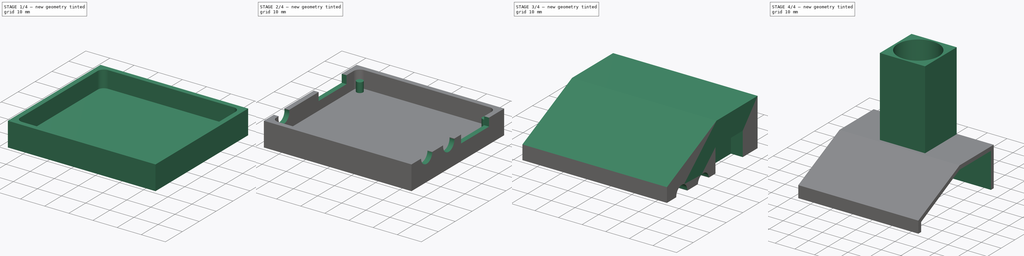
[diagram: build sequence overview — one tinted view per stage of 4, left to right]
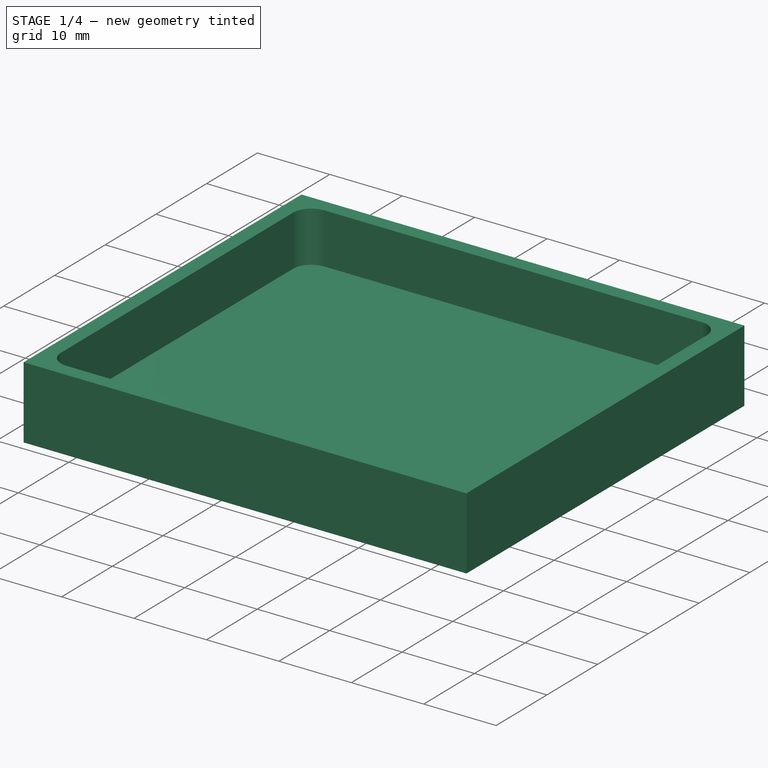
[diagram: stage 1 of 4 — iso view after this stage's code; geometry added in this stage tinted green]
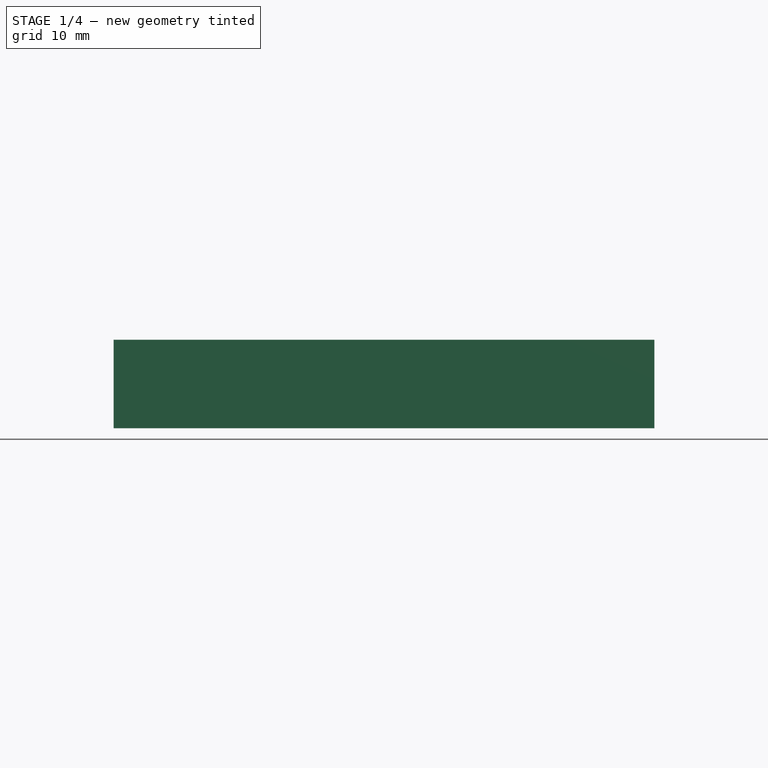
[diagram: stage 1 of 4 — front view after this stage's code; geometry added in this stage tinted green]
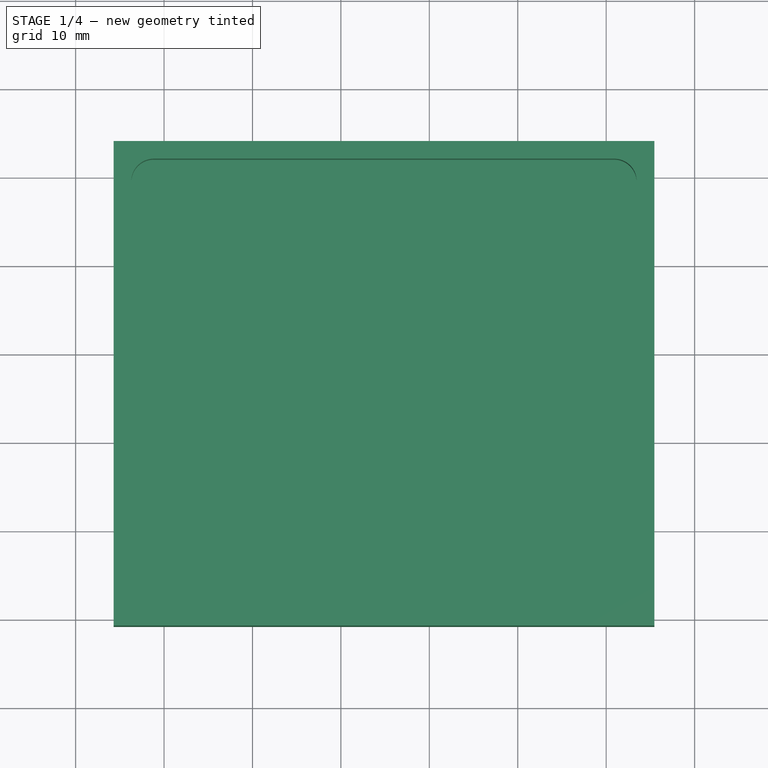
[diagram: stage 1 of 4 — top view after this stage's code; geometry added in this stage tinted green]
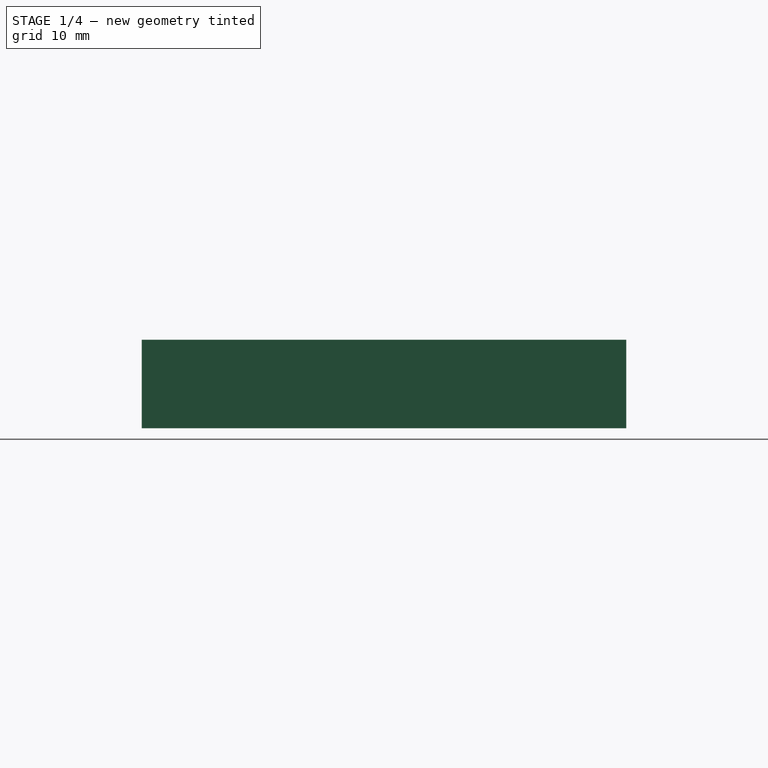
[diagram: stage 1 of 4 — right view after this stage's code; geometry added in this stage tinted green]
FCSTD DOCUMENT  (FreeCAD 0.19RUnknown)
Label: FT81X-Mic
License: All rights reserved
LicenseURL: http://en.wikipedia.org/wiki/All_rights_reserved
objects: Sketcher::SketchObject×12, Part::Feature×11, PartDesign::Pocket×7, PartDesign::Pad×5, PartDesign::SubShapeBinder×3, Part::Compound2×2, App::Link×2, PartDesign::Body×2, App::LinkGroup×1
note: 52 computed .brp shape members not serialized (recipe doc carries the construction recipe); baked Part::Feature solids carry a one-line shape summary decoded from their .brp

FEATURE [Part::Feature] Solid
  shape: bbox 17.86 x 16.05 x 16.64 mm, 151 faces (baked)
FEATURE [Part::Feature] Solid001
  shape: bbox 3 x 7.27 x 2.038 mm, 6 faces (baked)
FEATURE [Part::Feature] Solid002
  shape: bbox 3 x 7.27 x 2.038 mm, 6 faces (baked)
FEATURE [Part::Compound2] Compound  label="RJ45_Amphenol_RJHSE538X"
  Links = -> [Solid,Solid001,Solid002]
FEATURE [Part::Feature] Solid003
  shape: bbox 0.3 x 3.5 x 1 mm, 6 faces (baked)
FEATURE [Part::Feature] Solid004
  shape: bbox 1 x 3.5 x 0.3 mm, 6 faces (baked)
FEATURE [Part::Feature] Solid005
  shape: bbox 1 x 6 x 6 mm, 8 faces (baked)
FEATURE [Part::Feature] Solid006
  shape: bbox 13 x 6.45 x 12 mm, 34 faces (baked)
FEATURE [Part::Feature] Solid007
  shape: bbox 1 x 3.5 x 0.3 mm, 6 faces (baked)
FEATURE [Part::Feature] Solid008
  shape: bbox 1 x 3.5 x 0.3 mm, 6 faces (baked)
FEATURE [Part::Feature] Solid009
  shape: bbox 1 x 3.5 x 0.3 mm, 6 faces (baked)
FEATURE [Part::Compound2] Compound001  label="FC68131"
  Links = -> [Solid003,Solid004,Solid005,Solid006,Solid007,Solid008,Solid009]
FEATURE [Part::Feature] Solid010  label="Mikadapter PCB"
  shape: bbox 57.15 x 50.8 x 1.6 mm, 76 faces (baked)
FEATURE [App::Link] Link  label="RJ45_Amphenol_RJHSE538X001"
  ElementCount = 2
  LinkedObject = -> Compound
  PlacementList = 2 placements: [(163.115,-58.658,1.65),(123.12,-65.548,1.65)]
  ScaleList = (2) [(1,1,1),(1,1,1)]
  ShowElement = false
FEATURE [App::Link] Link001  label="FC68132"
  ElementCount = 3
  LinkedObject = -> Compound001
  PlacementList = 3 placements: [(166.45,-77.771,2.15),(166.37,-90.805,2.65),(119.38,-90.805,1.65)]
  ScaleList = (3) [(1,1,1),(1,1,1),(1,1,1)]
  ShowElement = false
FEATURE [App::LinkGroup] LinkGroup  label="Mikadapter 1"
  ElementList = -> [Link,Link001,Solid010]
  LinkMode = 0
  Placement = pos=(-138,69.0001,5) rot=(0,0,1;0rad)
FEATURE [PartDesign::SubShapeBinder] Binder
  BindMode = 0
  ClaimChildren = false
  Context = -> Body [Binder.]
  Fuse = false
  MakeFace = true
  PartialLoad = false
  Relative = true
  Support = -> [LinkGroup]
  _Version = 2
FEATURE [Sketcher::SketchObject] Sketch
  ExternalGeometry = -> [Binder]
  FullyConstrained = true
  MapMode = 5
  Support = -> [XY_Plane]
  sketch-geometry (4):
    g0: LineSegment StartX=-25.7 StartY=24.0101 StartZ=0 EndX=35.45 EndY=24.0101 EndZ=0
    g1: LineSegment StartX=35.45 StartY=24.0101 StartZ=0 EndX=35.45 EndY=-30.7899 EndZ=0
    g2: LineSegment StartX=35.45 StartY=-30.7899 StartZ=0 EndX=-25.7 EndY=-30.7899 EndZ=0
    g3: LineSegment StartX=-25.7 StartY=-30.7899 StartZ=0 EndX=-25.7 EndY=24.0101 EndZ=0
  constraints (12):
    c: Coincident(g0,g1)
    c: Coincident(g1,g2)
    c: Coincident(g2,g3)
    c: Coincident(g3,g0)
    c: Horizontal(g0)
    c: Horizontal(g2)
    c: Vertical(g1)
    c: Vertical(g3)
    c: DistanceY(g-3,g0) = 2
    c: DistanceY(g1,g-7) = 2
    c: DistanceX(g2,g-6) = 2
    c: DistanceX(g-8,g0) = 2
FEATURE [PartDesign::Pad] Pad
  Direction = (1,1,1)
  Length = 10
  Length2 = 100
  Profile = -> Sketch
  Type = 0
FEATURE [Sketcher::SketchObject] Sketch001
  ExternalGeometry = -> [Binder]
  FullyConstrained = true
  MapMode = 5
  Placement = pos=(0,0,10) rot=(0,0,1;0rad)
  Support = -> [Pad]
  sketch-geometry (8):
    g0: ArcOfCircle CenterX=30.91 CenterY=19.4701 CenterZ=0 NormalX=0 NormalY=0 NormalZ=1 AngleXU=0 Radius=2.53999 StartAngle=6.28318 EndAngle=7.85399
    g1: ArcOfCircle CenterX=30.275 CenterY=-25.6149 CenterZ=0 NormalX=0 NormalY=0 NormalZ=1 AngleXU=0 Radius=3.17501 StartAngle=4.71239 EndAngle=6.28318
    g2: ArcOfCircle CenterX=-21.16 CenterY=-26.25 CenterZ=0 NormalX=0 NormalY=0 NormalZ=1 AngleXU=0 Radius=2.53999 StartAngle=3.14159 EndAngle=4.71239
    g3: ArcOfCircle CenterX=-21.16 CenterY=19.4701 CenterZ=0 NormalX=0 NormalY=0 NormalZ=1 AngleXU=0 Radius=2.53997 StartAngle=1.57078 EndAngle=3.1416
    g4: LineSegment StartX=-21.16 StartY=22.0101 StartZ=0 EndX=30.91 EndY=22.0101 EndZ=0
    g5: LineSegment StartX=33.45 StartY=19.4701 StartZ=0 EndX=33.45 EndY=-25.6149 EndZ=0
    g6: LineSegment StartX=30.275 StartY=-28.7899 StartZ=0 EndX=-21.16 EndY=-28.7899 EndZ=0
    g7: LineSegment StartX=-23.7 StartY=-26.2499 StartZ=0 EndX=-23.7 EndY=19.4701 EndZ=0
  constraints (20):
    c: Coincident(g0,g-10)
    c: Coincident(g0,g-10)
    c: Coincident(g0,g-10)
    c: Coincident(g1,g-8)
    c: Coincident(g1,g-9)
    c: Coincident(g1,g-8)
    c: Coincident(g2,g-6)
    c: Coincident(g2,g-6)
    c: Coincident(g2,g-7)
    c: Coincident(g3,g-4)
    c: Coincident(g3,g-5)
    c: Coincident(g3,g-4)
    c: Coincident(g4,g3)
    c: Coincident(g4,g0)
    c: Coincident(g5,g0)
    c: Coincident(g5,g1)
    c: Coincident(g6,g1)
    c: Coincident(g6,g2)
    c: Coincident(g7,g2)
    c: Coincident(g7,g3)
FEATURE [PartDesign::Pocket] Pocket
  BaseFeature = -> Pad
  Length = 7
  Length2 = 100
  Profile = -> Sketch001
  Type = 0
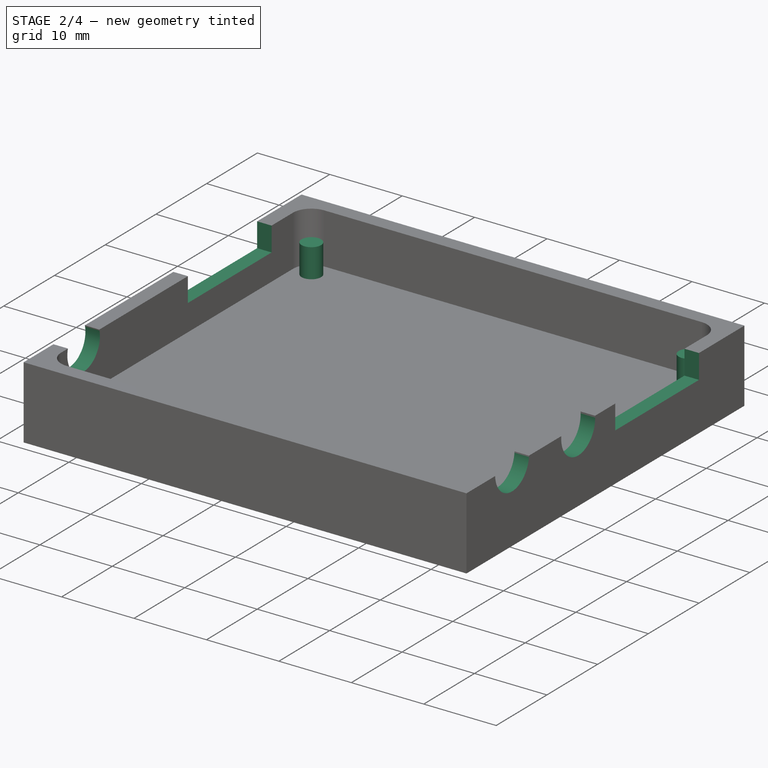
[diagram: stage 2 of 4 — iso view after this stage's code; geometry added in this stage tinted green]
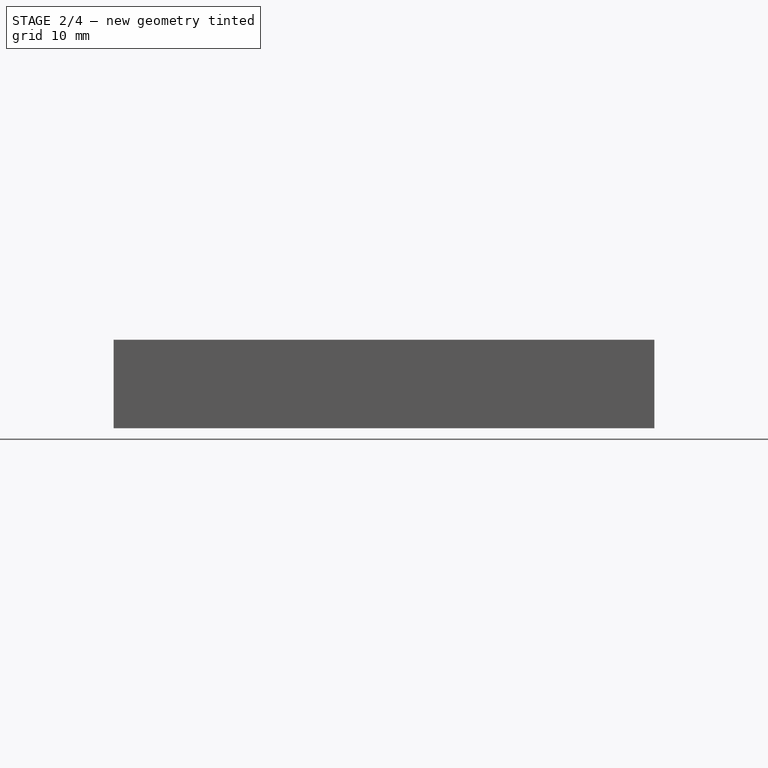
[diagram: stage 2 of 4 — front view after this stage's code; geometry added in this stage tinted green]
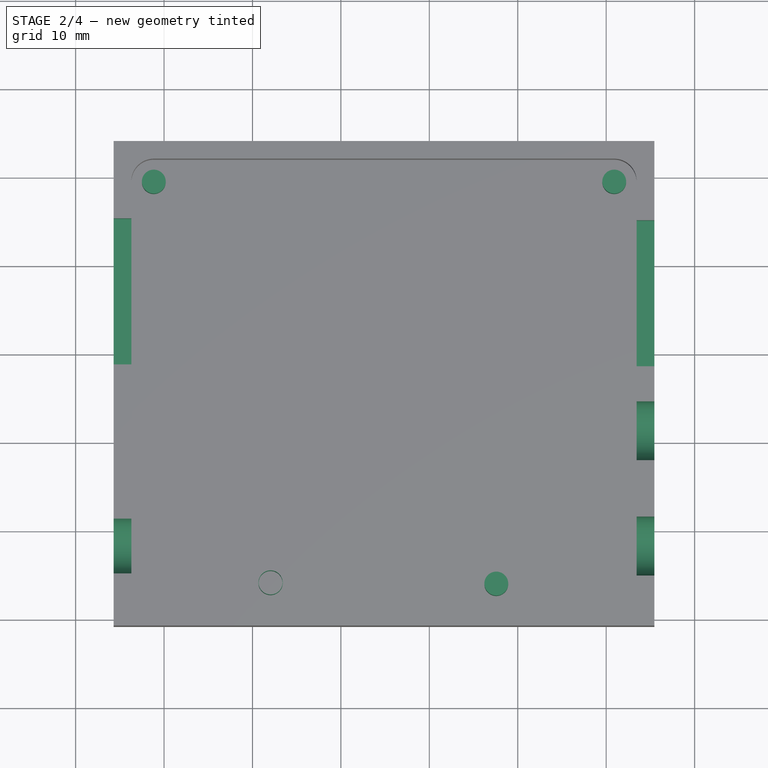
[diagram: stage 2 of 4 — top view after this stage's code; geometry added in this stage tinted green]
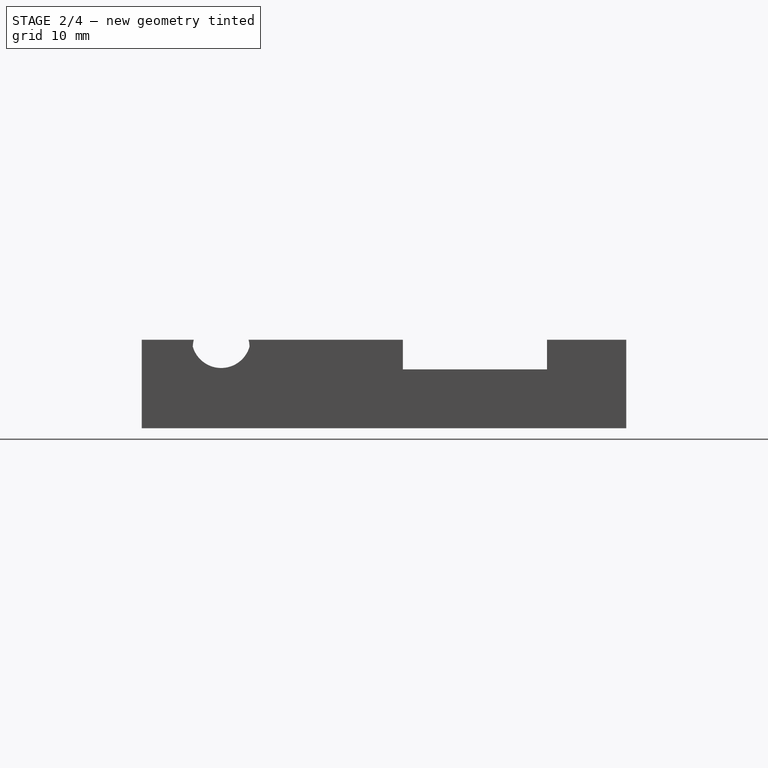
[diagram: stage 2 of 4 — right view after this stage's code; geometry added in this stage tinted green]
FEATURE [Sketcher::SketchObject] Sketch002
  ExternalGeometry = -> [Binder,Pocket]
  FullyConstrained = true
  MapMode = 5
  Placement = pos=(-25.7,0,0) rot=(0.57735,-0.57735,-0.57735;2.0944rad)
  Support = -> [Pocket]
  sketch-geometry (5):
    g0: Circle CenterX=21.8049 CenterY=9.15 CenterZ=0 NormalX=0 NormalY=0 NormalZ=1 AngleXU=0 Radius=3.21
    g1: LineSegment StartX=-15.2571 StartY=6.65 StartZ=0 EndX=1.25294 EndY=6.65 EndZ=0
    g2: LineSegment StartX=1.25294 StartY=6.65 StartZ=0 EndX=1.25294 EndY=10 EndZ=0
    g3: LineSegment StartX=1.25294 StartY=10 StartZ=0 EndX=-15.2571 EndY=10 EndZ=0
    g4: LineSegment StartX=-15.2571 StartY=10 StartZ=0 EndX=-15.2571 EndY=6.65 EndZ=0
  constraints (13):
    c: Symmetric(g-10,g-10,g0)
    c: Diameter(g0) = 6.42
    c: Coincident(g1,g2)
    c: Coincident(g2,g3)
    c: Coincident(g3,g4)
    c: Coincident(g4,g1)
    c: Horizontal(g1)
    c: Horizontal(g3)
    c: Vertical(g2)
    c: Vertical(g4)
    c: Coincident(g1,g-7)
    c: DistanceX(g1,g-5) = 0
    c: PointOnObject(g3,g-11)
FEATURE [PartDesign::Pocket] Pocket001
  BaseFeature = -> Pocket
  Length = 5
  Length2 = 100
  Profile = -> Sketch002
  Type = 0
FEATURE [Sketcher::SketchObject] Sketch003
  ExternalGeometry = -> [Binder,Pocket001]
  FullyConstrained = true
  MapMode = 5
  Placement = pos=(35.45,0,0) rot=(0.57735,0.57735,0.57735;2.0944rad)
  Support = -> [Pocket001]
  sketch-geometry (6):
    g0: Circle CenterX=-21.8049 CenterY=10.15 CenterZ=0 NormalX=0 NormalY=0 NormalZ=1 AngleXU=0 Radius=3.34
    g1: Circle CenterX=-8.77094 CenterY=9.65 CenterZ=0 NormalX=0 NormalY=0 NormalZ=1 AngleXU=0 Radius=3.34
    g2: LineSegment StartX=-1.46294 StartY=6.65 StartZ=0 EndX=15.0471 EndY=6.65 EndZ=0
    g3: LineSegment StartX=15.0471 StartY=6.65 StartZ=0 EndX=15.0471 EndY=10 EndZ=0
    g4: LineSegment StartX=15.0471 StartY=10 StartZ=0 EndX=-1.46294 EndY=10 EndZ=0
    g5: LineSegment StartX=-1.46294 StartY=10 StartZ=0 EndX=-1.46294 EndY=6.65 EndZ=0
  constraints (15):
    c: Equal(g1,g0)
    c: Symmetric(g-6,g-6,g0)
    c: Symmetric(g-4,g-4,g1)
    c: Diameter(g0) = 6.68
    c: Coincident(g2,g3)
    c: Coincident(g3,g4)
    c: Coincident(g4,g5)
    c: Coincident(g5,g2)
    c: Horizontal(g2)
    c: Horizontal(g4)
    c: Vertical(g3)
    c: Vertical(g5)
    c: Coincident(g2,g-8)
    c: DistanceX(g2,g-9) = 0
    c: PointOnObject(g3,g-10)
FEATURE [PartDesign::Pocket] Pocket002
  BaseFeature = -> Pocket001
  Length = 5
  Length2 = 100
  Profile = -> Sketch003
  Type = 0
FEATURE [Sketcher::SketchObject] Sketch009
  ExternalGeometry = -> [Binder]
  FullyConstrained = false
  MapMode = 5
  Placement = pos=(0,0,3) rot=(0,0,1;0rad)
  Support = -> [Pocket002]
  sketch-geometry (5):
    g0: Circle CenterX=-7.95202 CenterY=-25.8689 CenterZ=0 NormalX=0 NormalY=0 NormalZ=1 AngleXU=0 Radius=1.37516
    g1: Circle CenterX=-7.95202 CenterY=-25.8689 CenterZ=0 NormalX=0 NormalY=0 NormalZ=1 AngleXU=0 Radius=1.35
    g2: Circle CenterX=17.575 CenterY=-25.9959 CenterZ=0 NormalX=0 NormalY=0 NormalZ=1 AngleXU=0 Radius=1.35
    g3: Circle CenterX=30.91 CenterY=19.4701 CenterZ=0 NormalX=0 NormalY=0 NormalZ=1 AngleXU=0 Radius=1.35
    g4: Circle CenterX=-21.16 CenterY=19.4701 CenterZ=0 NormalX=0 NormalY=0 NormalZ=1 AngleXU=0 Radius=1.35
  constraints (9):
    c: Coincident(g0,g-5)
    c: Coincident(g1,g0)
    c: Coincident(g2,g-6)
    c: Coincident(g3,g-4)
    c: Coincident(g4,g-3)
    c: Equal(g4,g1)
    c: Equal(g1,g-6)
    c: Equal(g-6,g2)
    c: Equal(g2,g3)
FEATURE [PartDesign::Pad] Pad003
  BaseFeature = -> Pocket002
  Direction = (1,1,1)
  Length = 4
  Length2 = 100
  Profile = -> Sketch009
  Type = 0
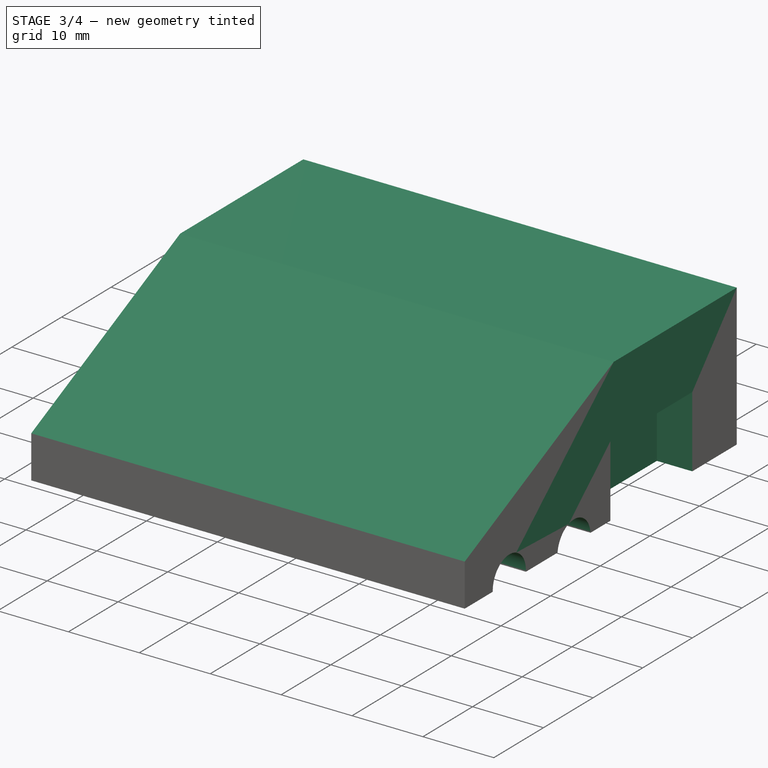
[diagram: stage 3 of 4 — iso view after this stage's code; geometry added in this stage tinted green]
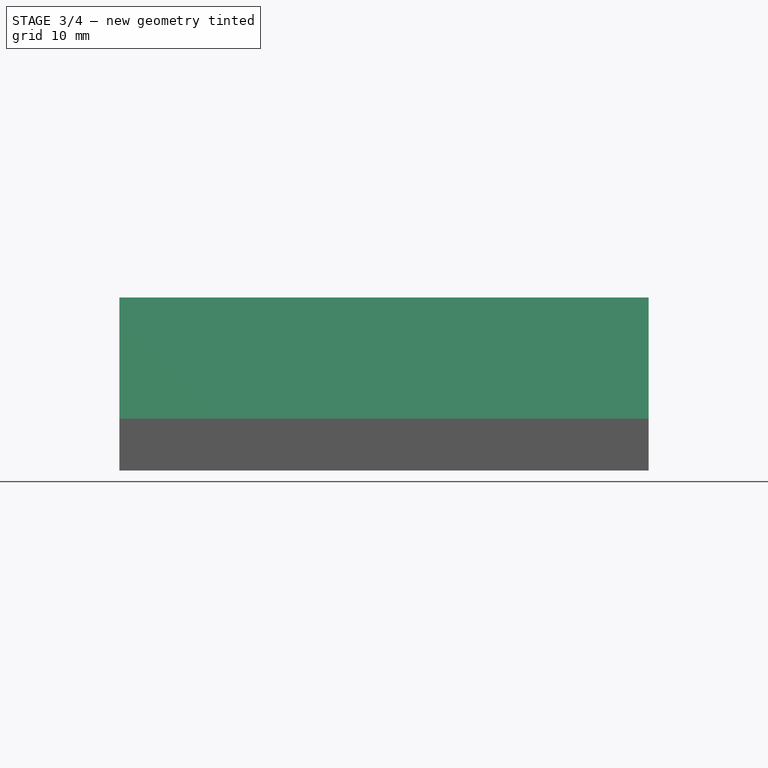
[diagram: stage 3 of 4 — front view after this stage's code; geometry added in this stage tinted green]
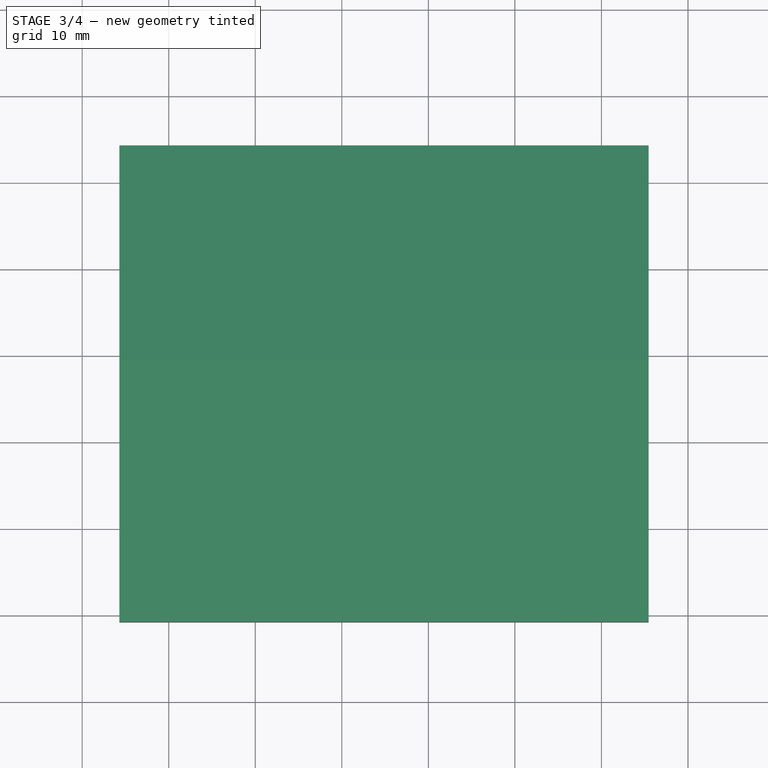
[diagram: stage 3 of 4 — top view after this stage's code; geometry added in this stage tinted green]
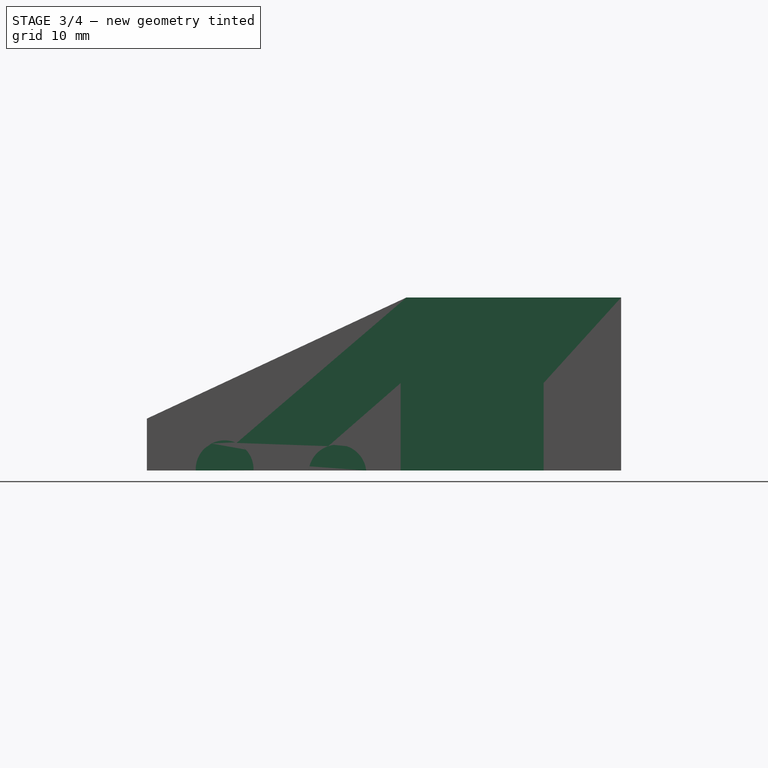
[diagram: stage 3 of 4 — right view after this stage's code; geometry added in this stage tinted green]
FEATURE [PartDesign::SubShapeBinder] Binder001
  BindMode = 0
  ClaimChildren = false
  Context = -> Body001 [Binder001.]
  Fuse = false
  MakeFace = true
  PartialLoad = false
  Relative = true
  Support = -> [Body]
  _Version = 2
FEATURE [Sketcher::SketchObject] Sketch004
  ExternalGeometry = -> [Binder001]
  FullyConstrained = true
  MapMode = 5
  Support = -> [XY_Plane001]
  sketch-geometry (4):
    g0: LineSegment StartX=-25.7 StartY=24.0101 StartZ=0 EndX=35.45 EndY=24.0101 EndZ=0
    g1: LineSegment StartX=35.45 StartY=24.0101 StartZ=0 EndX=35.45 EndY=-30.7899 EndZ=0
    g2: LineSegment StartX=35.45 StartY=-30.7899 StartZ=0 EndX=-25.7 EndY=-30.7899 EndZ=0
    g3: LineSegment StartX=-25.7 StartY=-30.7899 StartZ=0 EndX=-25.7 EndY=24.0101 EndZ=0
  constraints (10):
    c: Coincident(g0,g1)
    c: Coincident(g1,g2)
    c: Coincident(g2,g3)
    c: Coincident(g3,g0)
    c: Horizontal(g0)
    c: Horizontal(g2)
    c: Vertical(g1)
    c: Vertical(g3)
    c: Coincident(g0,g-4)
    c: Coincident(g1,g-5)
FEATURE [PartDesign::Pad] Pad001
  Direction = (1,1,1)
  Length = 20
  Length2 = 100
  Profile = -> Sketch004
  Type = 0
FEATURE [PartDesign::SubShapeBinder] Binder002
  BindMode = 0
  ClaimChildren = false
  Context = -> Body001 [Binder002.]
  Fuse = false
  MakeFace = true
  PartialLoad = false
  Relative = true
  Support = -> [LinkGroup]
  _Version = 2
FEATURE [Sketcher::SketchObject] Sketch005
  ExternalGeometry = -> [Binder002,Pad001]
  FullyConstrained = true
  MapMode = 5
  Placement = pos=(35.45,0,0) rot=(0.57735,0.57735,0.57735;2.0944rad)
  Support = -> [Pad001]
  sketch-geometry (3):
    g0: LineSegment StartX=-30.7899 StartY=20 StartZ=0 EndX=-0.789942 EndY=20 EndZ=0
    g1: LineSegment StartX=-30.7899 StartY=6 StartZ=0 EndX=-0.789942 EndY=20 EndZ=0
    g2: LineSegment StartX=-30.7899 StartY=20 StartZ=0 EndX=-30.7899 EndY=6 EndZ=0
  constraints (8):
    c: PointOnObject(g0,g-15)
    c: Distance(g0) = 30
    c: Coincident(g1,g0)
    c: Coincident(g0,g-15)
    c: Coincident(g2,g0)
    c: PointOnObject(g2,g-13)
    c: Distance(g2) = 14
    c: Coincident(g2,g1)
FEATURE [PartDesign::Pocket] Pocket003
  BaseFeature = -> Pad001
  Length = 0
  Length2 = 100
  Profile = -> Sketch005
  Type = 1
FEATURE [Sketcher::SketchObject] Sketch006
  ExternalGeometry = -> [Binder002,Pocket003]
  FullyConstrained = true
  MapMode = 5
  Placement = pos=(35.45,0,0) rot=(0.57735,0.57735,0.57735;2.0944rad)
  Support = -> [Pocket003]
  sketch-geometry (6):
    g0: LineSegment StartX=-1.46294 StartY=10.11 StartZ=0 EndX=15.0471 EndY=10.11 EndZ=0
    g1: LineSegment StartX=15.0471 StartY=10.11 StartZ=0 EndX=15.0471 EndY=-0.889997 EndZ=0
    g2: LineSegment StartX=15.0471 StartY=-0.889997 StartZ=0 EndX=-1.46294 EndY=-0.889997 EndZ=0
    g3: LineSegment StartX=-1.46294 StartY=-0.889997 StartZ=0 EndX=-1.46294 EndY=10.11 EndZ=0
    g4: Circle CenterX=-8.77094 CenterY=-0.349997 CenterZ=0 NormalX=0 NormalY=0 NormalZ=1 AngleXU=0 Radius=3.34
    g5: Circle CenterX=-21.8049 CenterY=0.150003 CenterZ=0 NormalX=0 NormalY=0 NormalZ=1 AngleXU=0 Radius=3.34
  constraints (15):
    c: Coincident(g0,g1)
    c: Coincident(g1,g2)
    c: Coincident(g2,g3)
    c: Coincident(g3,g0)
    c: Horizontal(g0)
    c: Horizontal(g2)
    c: Vertical(g1)
    c: Vertical(g3)
    c: Coincident(g0,g-7)
    c: DistanceX(g0,g-9) = 0
    c: Distance(g3) = 11
    c: Equal(g4,g5)
    c: Diameter(g5) = 6.68
    c: Symmetric(g-4,g-4,g5)
    c: Symmetric(g-6,g-6,g4)
FEATURE [PartDesign::Pocket] Pocket004
  BaseFeature = -> Pocket003
  Length = 5
  Length2 = 100
  Profile = -> Sketch006
  Type = 0
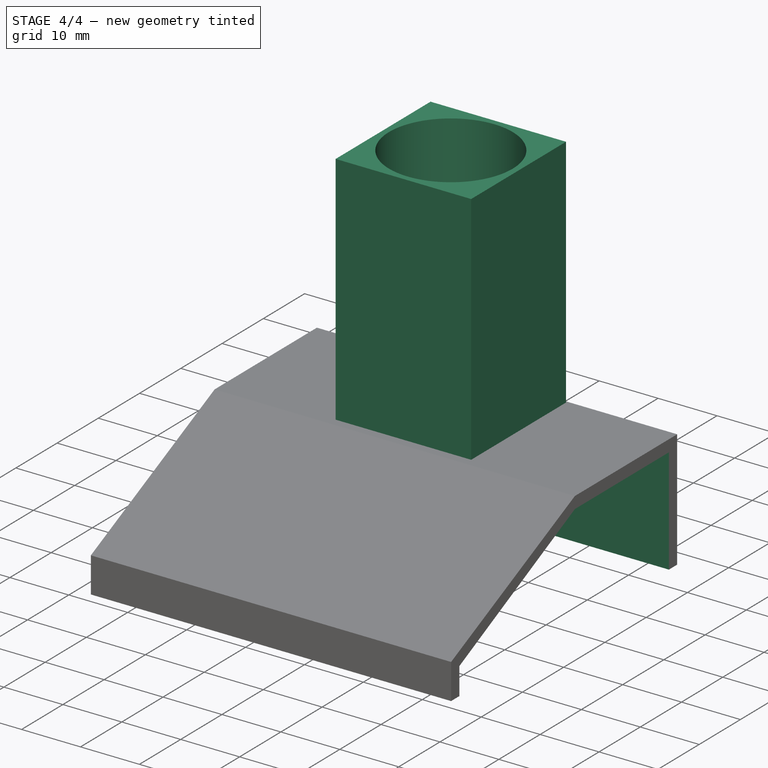
[diagram: stage 4 of 4 — iso view after this stage's code; geometry added in this stage tinted green]
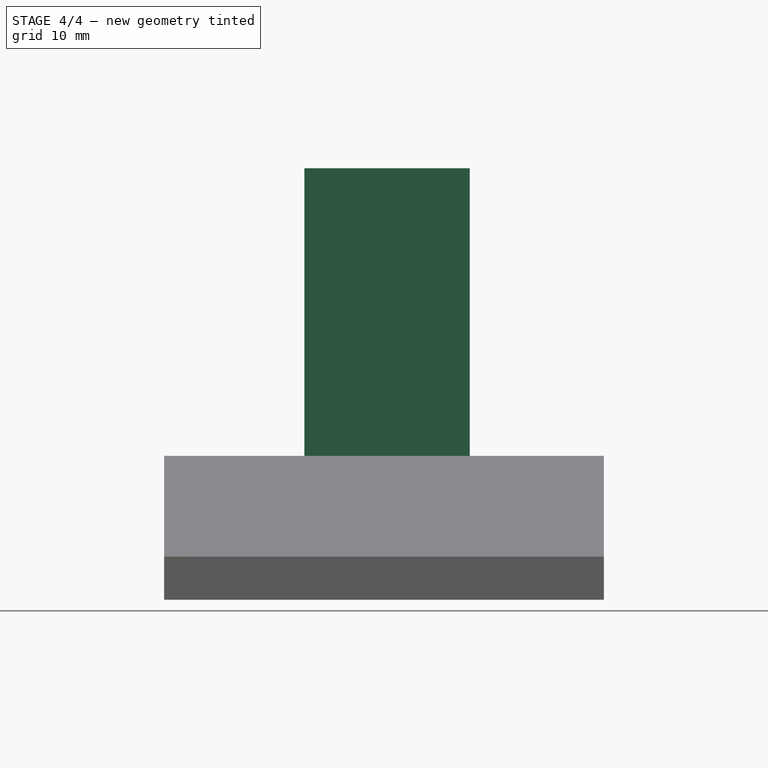
[diagram: stage 4 of 4 — front view after this stage's code; geometry added in this stage tinted green]
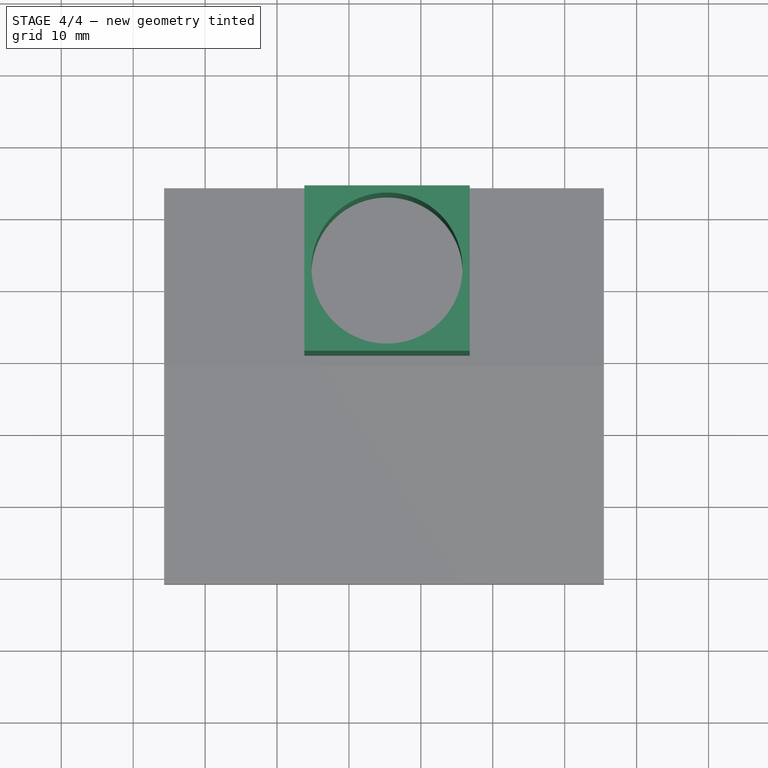
[diagram: stage 4 of 4 — top view after this stage's code; geometry added in this stage tinted green]
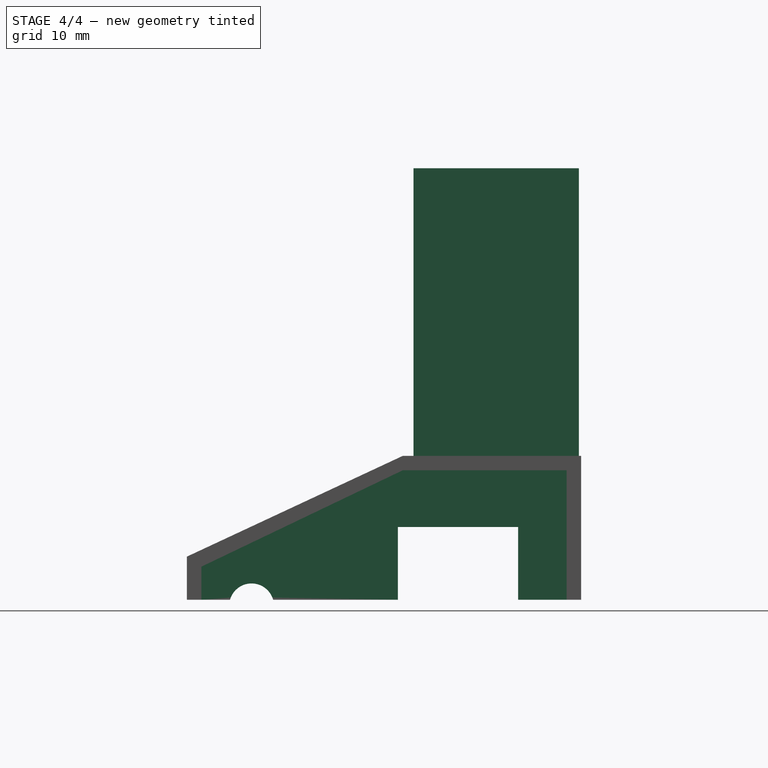
[diagram: stage 4 of 4 — right view after this stage's code; geometry added in this stage tinted green]
FEATURE [Sketcher::SketchObject] Sketch007
  ExternalGeometry = -> [Pocket004,Binder002]
  FullyConstrained = true
  MapMode = 5
  Placement = pos=(-25.7,0,0) rot=(0.57735,-0.57735,-0.57735;2.0944rad)
  Support = -> [Pocket004]
  sketch-geometry (5):
    g0: LineSegment StartX=-15.2571 StartY=10.11 StartZ=0 EndX=0 EndY=10.11 EndZ=0
    g1: LineSegment StartX=0 StartY=10.11 StartZ=0 EndX=0 EndY=0 EndZ=0
    g2: LineSegment StartX=0 StartY=0 StartZ=0 EndX=-15.2571 EndY=0 EndZ=0
    g3: LineSegment StartX=-15.2571 StartY=0 StartZ=0 EndX=-15.2571 EndY=10.11 EndZ=0
    g4: Circle CenterX=21.8049 CenterY=-0.849997 CenterZ=0 NormalX=0 NormalY=0 NormalZ=1 AngleXU=0 Radius=3.34
  constraints (12):
    c: Coincident(g0,g1)
    c: Coincident(g1,g2)
    c: Coincident(g2,g3)
    c: Coincident(g3,g0)
    c: Horizontal(g0)
    c: Horizontal(g2)
    c: Vertical(g1)
    c: Vertical(g3)
    c: Coincident(g0,g-7)
    c: Coincident(g1,g-1)
    c: Diameter(g4) = 6.68
    c: Symmetric(g-6,g-6,g4)
FEATURE [PartDesign::Pocket] Pocket005
  BaseFeature = -> Pocket004
  Length = 17
  Length2 = 100
  Profile = -> Sketch007
  Type = 0
FEATURE [Sketcher::SketchObject] Sketch008
  ExternalGeometry = -> [Pocket005]
  FullyConstrained = true
  MapMode = 5
  Placement = pos=(0,0,20) rot=(0,0,1;0rad)
  Support = -> [Pocket005]
  sketch-geometry (5):
    g0: Circle CenterX=5.29998 CenterY=12.2101 CenterZ=0 NormalX=0 NormalY=0 NormalZ=1 AngleXU=0 Radius=10.5
    g1: LineSegment StartX=-6.20002 StartY=23.7101 StartZ=0 EndX=16.8 EndY=23.7101 EndZ=0
    g2: LineSegment StartX=16.8 StartY=23.7101 StartZ=0 EndX=16.8 EndY=0.710058 EndZ=0
    g3: LineSegment StartX=16.8 StartY=0.710058 StartZ=0 EndX=-6.20002 EndY=0.710058 EndZ=0
    g4: LineSegment StartX=-6.20002 StartY=0.710058 StartZ=0 EndX=-6.20002 EndY=23.7101 EndZ=0
  constraints (14):
    c: DistanceY(g-6,g0) = 13
    c: DistanceX(g-6,g0) = 31
    c: Coincident(g1,g2)
    c: Coincident(g2,g3)
    c: Coincident(g3,g4)
    c: Coincident(g4,g1)
    c: Horizontal(g1)
    c: Horizontal(g3)
    c: Vertical(g2)
    c: Vertical(g4)
    c: Symmetric(g3,g1,g0)
    c: Distance(g2) = 23
    c: Distance(g1) = 23
    c: Diameter(g0) = 21
FEATURE [PartDesign::Pad] Pad002
  BaseFeature = -> Pocket005
  Direction = (1,1,1)
  Length = 40
  Length2 = 100
  Profile = -> Sketch008
  Type = 0
FEATURE [PartDesign::Body] Body
  Group = -> [Binder,Sketch,Pad,Sketch001,Pocket,Sketch002,Pocket001,Sketch003,Pocket002,Sketch009,Pad003]
  Origin = -> Origin
  Tip = -> Pad003
FEATURE [Sketcher::SketchObject] Sketch010
  ExternalGeometry = -> [Pocket005]
  FullyConstrained = true
  MapMode = 5
  Placement = pos=(35.45,0,0) rot=(0.57735,0.57735,0.57735;2.0944rad)
  Support = -> [Pocket005]
  sketch-geometry (5):
    g0: LineSegment StartX=-28.7899 StartY=0 StartZ=0 EndX=-28.7899 EndY=4.6 EndZ=0
    g1: LineSegment StartX=-28.7899 StartY=4.6 StartZ=0 EndX=-0.789942 EndY=18 EndZ=0
    g2: LineSegment StartX=-0.789942 StartY=18 StartZ=0 EndX=22.0101 EndY=18 EndZ=0
    g3: LineSegment StartX=22.0101 StartY=18 StartZ=0 EndX=22.0101 EndY=0 EndZ=0
    g4: LineSegment StartX=-28.7899 StartY=0 StartZ=0 EndX=22.0101 EndY=0 EndZ=0
  constraints (15):
    c: DistanceY(g2,g-6) = 2
    c: Coincident(g1,g2)
    c: Parallel(g0,g-4)
    c: Coincident(g0,g1)
    c: DistanceX(g-4,g0) = 2
    c: DistanceY(g1,g-5) = 2
    c: DistanceX(g-5,g1) = 0
    c: DistanceY(g0,g-4) = 1.4
    c: Coincident(g3,g2)
    c: PointOnObject(g3,g-1)
    c: Vertical(g3)
    c: DistanceX(g3,g-6) = 2
    c: PointOnObject(g0,g-1)
    c: Coincident(g4,g0)
    c: Coincident(g4,g3)
FEATURE [PartDesign::Pocket] Pocket006
  BaseFeature = -> Pad002
  Length = 5
  Length2 = 100
  Profile = -> Sketch010
  Type = 1
FEATURE [Sketcher::SketchObject] Sketch011
  ExternalGeometry = -> [Pocket006,Binder002]
  FullyConstrained = true
  MapMode = 5
  Placement = pos=(-25.7,0,0) rot=(0.57735,-0.57735,-0.57735;2.0944rad)
  Support = -> [Pocket006]
  sketch-geometry (11):
    g0: LineSegment StartX=-22.0101 StartY=0 StartZ=0 EndX=-22.0101 EndY=18 EndZ=0
    g1: LineSegment StartX=-22.0101 StartY=18 StartZ=0 EndX=0.789942 EndY=18 EndZ=0
    g2: LineSegment StartX=0.789942 StartY=18 StartZ=0 EndX=28.7899 EndY=4.6 EndZ=0
    g3: LineSegment StartX=28.7899 StartY=4.6 StartZ=0 EndX=28.7899 EndY=0 EndZ=0
    g4: LineSegment StartX=-22.0101 StartY=0 StartZ=0 EndX=-15.2571 EndY=0 EndZ=0
    g5: LineSegment StartX=-15.2571 StartY=0 StartZ=0 EndX=-15.2571 EndY=10.11 EndZ=0
    g6: LineSegment StartX=-15.2571 StartY=10.11 StartZ=0 EndX=1.46294 EndY=10.11 EndZ=0
    g7: LineSegment StartX=1.46294 StartY=10.11 StartZ=0 EndX=1.46294 EndY=0 EndZ=0
    g8: LineSegment StartX=1.46294 StartY=0 StartZ=0 EndX=18.8049 EndY=0 EndZ=0
    g9: ArcOfCircle CenterX=21.8049 CenterY=-0.849997 CenterZ=0 NormalX=0 NormalY=0 NormalZ=1 AngleXU=0 Radius=3.11809 StartAngle=0.276096 EndAngle=2.8655
    g10: LineSegment StartX=24.8049 StartY=1e-16 StartZ=0 EndX=28.7899 EndY=0 EndZ=0
  constraints (26):
    c: Coincident(g0,g-4)
    c: Coincident(g0,g-4)
    c: Coincident(g1,g0)
    c: Coincident(g1,g-5)
    c: Coincident(g2,g1)
    c: Coincident(g2,g-6)
    c: Coincident(g3,g2)
    c: Coincident(g3,g-6)
    c: Coincident(g4,g0)
    c: Horizontal(g4)
    c: DistanceX(g4,g-7) = 0
    c: Coincident(g5,g4)
    c: Coincident(g5,g-7)
    c: Coincident(g6,g5)
    c: Coincident(g6,g-9)
    c: Coincident(g7,g6)
    c: Vertical(g7)
    c: DistanceY(g-1,g7) = 0
    c: Coincident(g8,g7)
    c: Horizontal(g8)
    c: DistanceX(g-10,g8) = 0
    c: Coincident(g9,g8)
    c: PointOnObject(g9,g-1)
    c: Symmetric(g-10,g-10,g9)
    c: Coincident(g10,g9)
    c: Coincident(g10,g3)
FEATURE [PartDesign::Pad] Pad004
  BaseFeature = -> Pocket006
  Direction = (1,1,1)
  Length = 2
  Length2 = 100
  Profile = -> Sketch011
  Reversed = true
  Type = 0
FEATURE [PartDesign::Body] Body001
  Group = -> [Sketch004,Binder001,Pad001,Binder002,Sketch005,Pocket003,Sketch006,Pocket004,Sketch007,Pocket005,Sketch008,Pad002,Sketch010,Pocket006,Sketch011,Pad004]
  Origin = -> Origin001
  Placement = pos=(0,0,10) rot=(0,0,1;0rad)
  Tip = -> Pad004
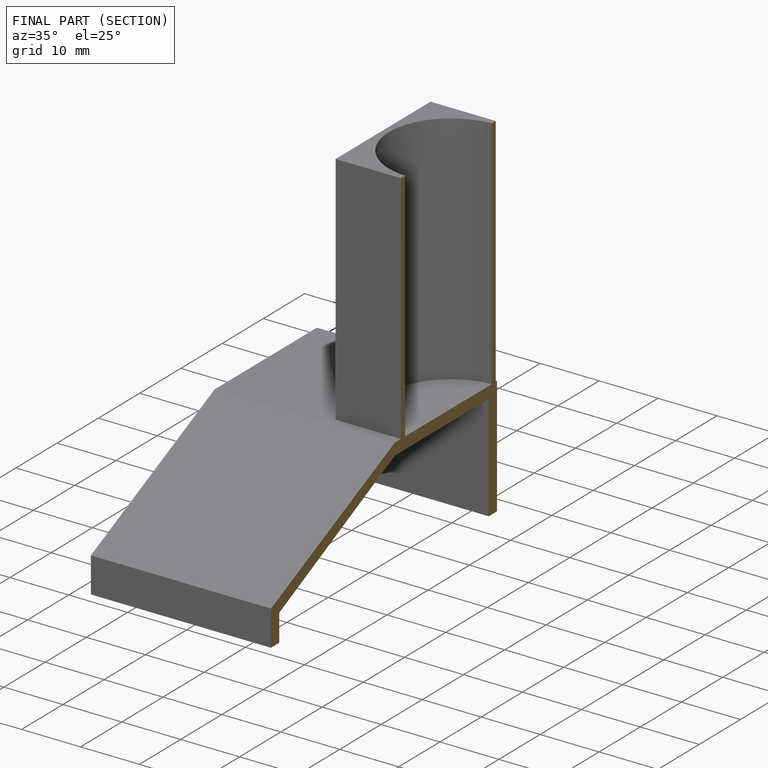
[diagram: finished part — half-section view (interior)]
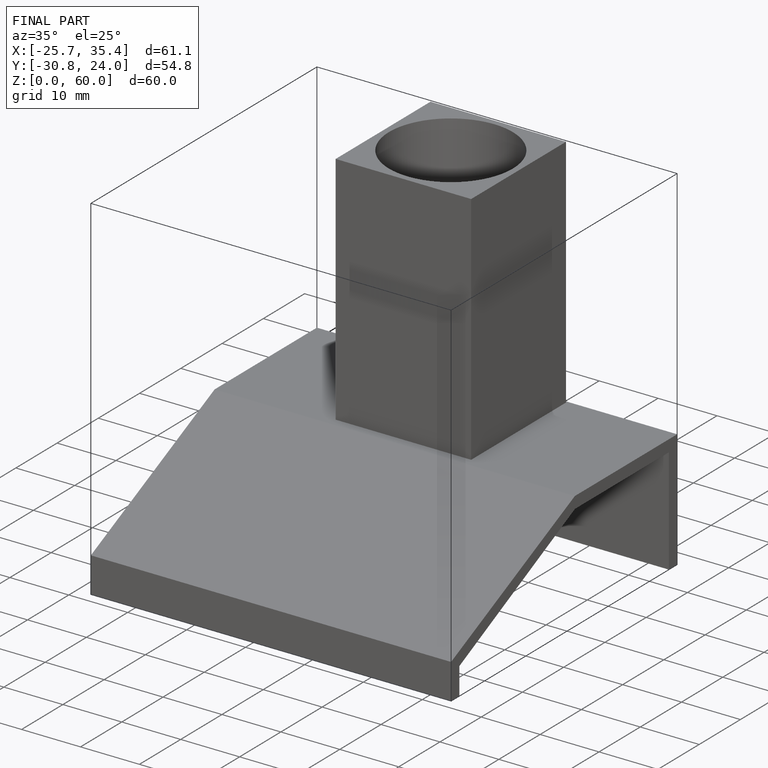
[diagram: finished part — iso view with bounding-box wireframe]
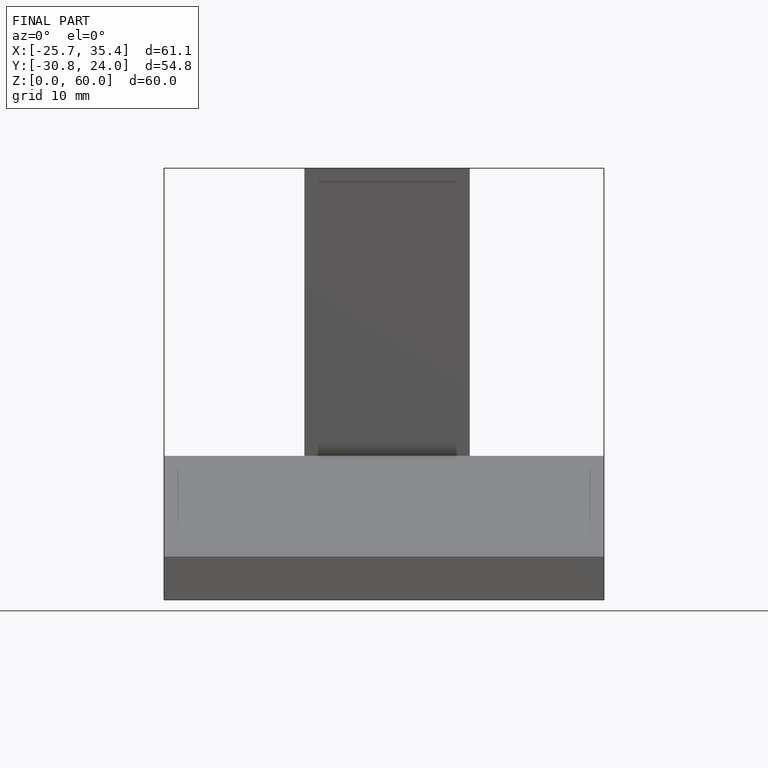
[diagram: finished part — front view with bounding-box wireframe]
